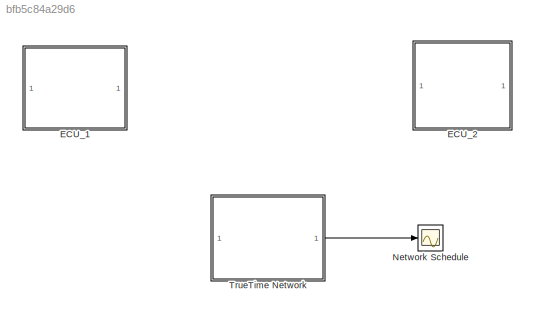
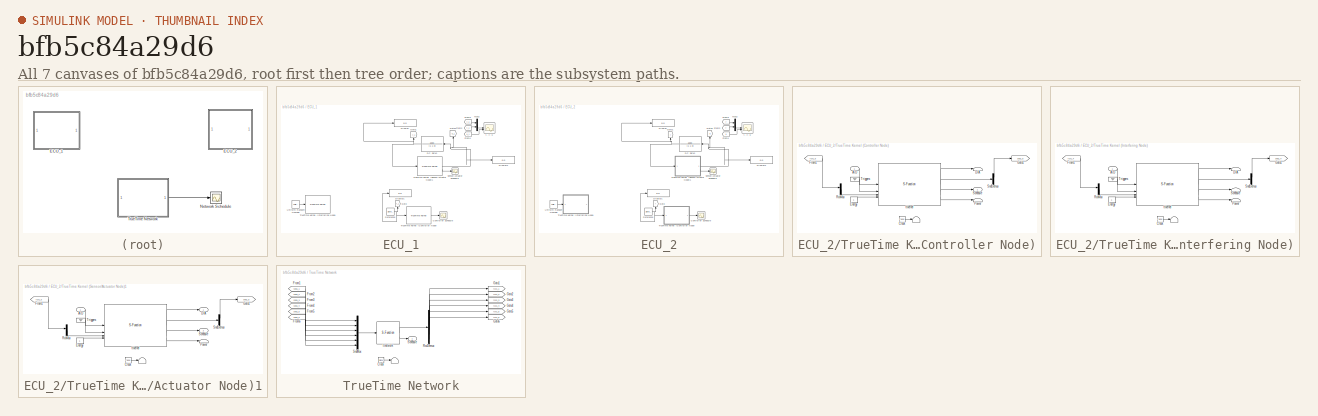
[diagram: thumbnail index - all 7 canvases of the model, root first then tree order]
MODEL slx_bfb5c84a29d6
KIND model
CONFIG AbsTol = auto
CONFIG EnableMultiTasking = off
CONFIG FixedStep = auto
CONFIG MaxStep = auto
CONFIG MinStep = auto
CONFIG RelTol = 1e-3
CONFIG SampleTimeConstraint = Unconstrained
CONFIG SolverName = VariableStepAuto
CONFIG StartTime = 0.0
CONFIG StopTime = 10.0
BLOCK [Scope]  Network Schedule
  Floating = off
  NumInputPorts = 1
  ScopeSpecificationString = Simulink.scopes.TimeScopeBlockCfg('CurrentConfiguration', extmgr.ConfigurationSet(extmgr.Configuration('Core','General UI',true,'FigureColor',[0.156862745098039 0.156862745098039 0.156862745098039]),extmgr.Configuration('Core','Source UI',true),extmgr.Configuration('Sources','WiredSimulink',true,'DataLoggingVariableName','ScopeData2','DataLoggingSaveFormat','StructureWithTime','DataLoggingDecimati...<+3022ch>
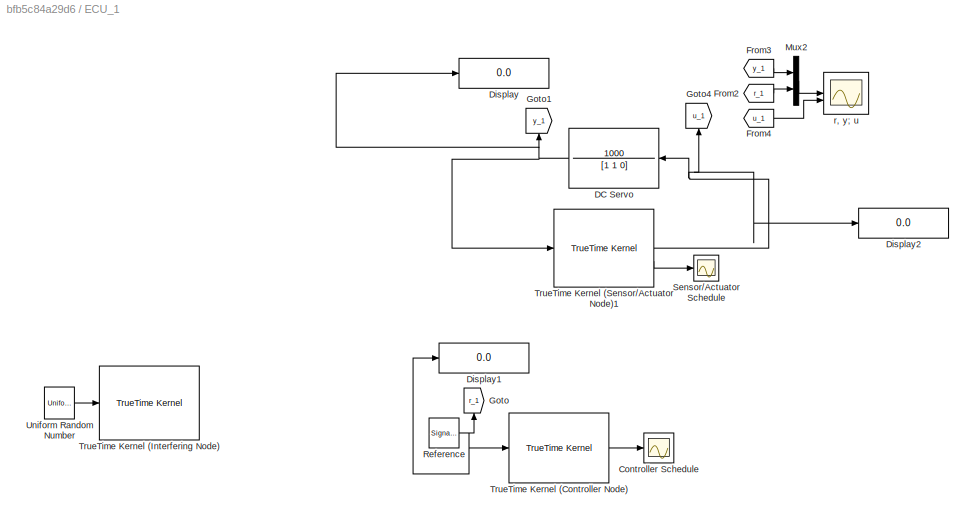
BLOCK [SubSystem] ECU_1
BLOCK [Scope] ECU_1/Controller Schedule
  Floating = off
  NumInputPorts = 1
  ScopeSpecificationString = Simulink.scopes.TimeScopeBlockCfg('CurrentConfiguration', extmgr.ConfigurationSet(extmgr.Configuration('Core','General UI',true,'FigureColor',[0.156862745098039 0.156862745098039 0.156862745098039]),extmgr.Configuration('Core','Source UI',true),extmgr.Configuration('Sources','WiredSimulink',true,'DataLoggingVariableName','ScopeData1','DataLoggingSaveFormat','StructureWithTime','DataLoggingDecimati...<+2845ch>
BLOCK [TransferFcn] ECU_1/DC Servo
  Denominator = [1 1 0]
  Numerator = 1000
BLOCK [Display] ECU_1/Display
  Decimation = 1
BLOCK [Display] ECU_1/Display1
  Decimation = 1
BLOCK [Display] ECU_1/Display2
  Decimation = 1
BLOCK [From] ECU_1/From2
  CloseFcn = tagdialog Close
  GotoTag = r_1
  TagVisibility = global
BLOCK [From] ECU_1/From3
  CloseFcn = tagdialog Close
  GotoTag = y_1
  TagVisibility = global
BLOCK [From] ECU_1/From4
  CloseFcn = tagdialog Close
  GotoTag = u_1
  TagVisibility = global
BLOCK [Goto] ECU_1/Goto
  GotoTag = r_1
  NameLocation = right
  TagVisibility = global
BLOCK [Goto] ECU_1/Goto1
  GotoTag = y_1
  NameLocation = right
  TagVisibility = global
BLOCK [Goto] ECU_1/Goto4
  GotoTag = u_1
  NameLocation = right
  TagVisibility = global
BLOCK [Mux] ECU_1/Mux2
  DisplayOption = bar
  Inputs = 2
BLOCK [SignalGenerator] ECU_1/Reference
  WaveForm = square
BLOCK [Scope] ECU_1/Sensor//Actuator Schedule
  Floating = off
  NumInputPorts = 1
  ScopeSpecificationString = Simulink.scopes.TimeScopeBlockCfg('CurrentConfiguration', extmgr.ConfigurationSet(extmgr.Configuration('Core','General UI',true,'FigureColor',[0.156862745098039 0.156862745098039 0.156862745098039]),extmgr.Configuration('Core','Source UI',true),extmgr.Configuration('Sources','WiredSimulink',true,'DataLoggingVariableName','ScopeData3','DataLoggingSaveFormat','StructureWithTime','DataLoggingDecimati...<+2860ch>
BLOCK [Reference] ECU_1/TrueTime Kernel (Controller Node)  REF=truetime/TrueTime Kernel  (lib defined in slx_0362a698a4ec)
  SourceBlock = truetime/TrueTime Kernel
BLOCK [Reference] ECU_1/TrueTime Kernel (Interfering Node)  REF=truetime/TrueTime Kernel  (lib defined in slx_0362a698a4ec)
  SourceBlock = truetime/TrueTime Kernel
BLOCK [Reference] ECU_1/TrueTime Kernel (Sensor//Actuator Node)1  REF=truetime/TrueTime Kernel  (lib defined in slx_0362a698a4ec)
  SourceBlock = truetime/TrueTime Kernel
BLOCK [UniformRandomNumber] ECU_1/Uniform Random Number
  Minimum = 0
  SampleTime = 0.001
BLOCK [Scope] ECU_1/r, y; u
  Floating = off
  NumInputPorts = 2
  ScopeSpecificationString = Simulink.scopes.TimeScopeBlockCfg('CurrentConfiguration', extmgr.ConfigurationSet(extmgr.Configuration('Core','General UI',true,'FigureColor',[0.156862745098039 0.156862745098039 0.156862745098039]),extmgr.Configuration('Core','Source UI',true),extmgr.Configuration('Sources','WiredSimulink',true,'DataLoggingSaveFormat','StructureWithTime','DataLoggingDecimation','1','DataLoggingDecimateData',true)...<+4022ch>
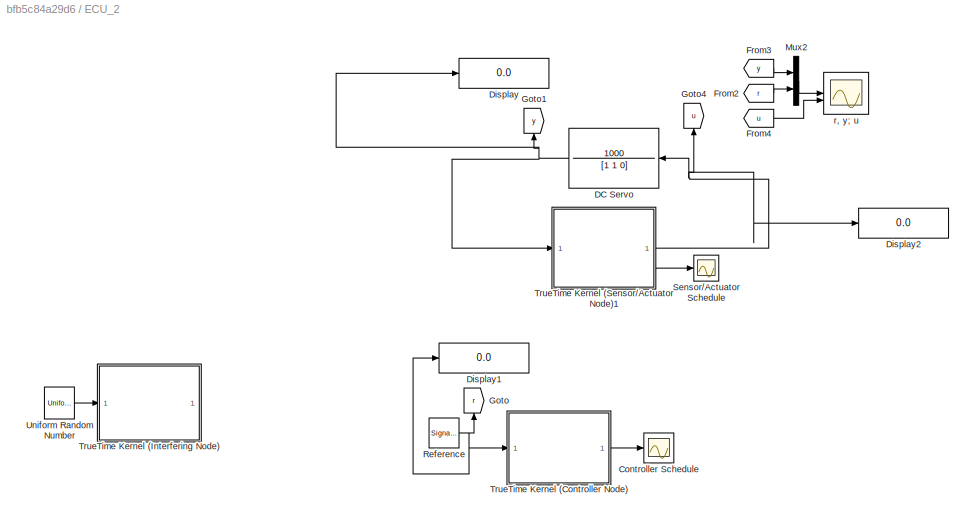
BLOCK [SubSystem] ECU_2
BLOCK [Scope] ECU_2/Controller Schedule
  Floating = off
  NumInputPorts = 1
  ScopeSpecificationString = Simulink.scopes.TimeScopeBlockCfg('CurrentConfiguration', extmgr.ConfigurationSet(extmgr.Configuration('Core','General UI',true,'FigureColor',[0.156862745098039 0.156862745098039 0.156862745098039]),extmgr.Configuration('Core','Source UI',true),extmgr.Configuration('Sources','WiredSimulink',true,'DataLoggingVariableName','ScopeData1','DataLoggingSaveFormat','StructureWithTime','DataLoggingDecimati...<+2845ch>
BLOCK [TransferFcn] ECU_2/DC Servo
  Denominator = [1 1 0]
  Numerator = 1000
BLOCK [Display] ECU_2/Display
  Decimation = 1
BLOCK [Display] ECU_2/Display1
  Decimation = 1
BLOCK [Display] ECU_2/Display2
  Decimation = 1
BLOCK [From] ECU_2/From2
  CloseFcn = tagdialog Close
  GotoTag = r
  TagVisibility = global
BLOCK [From] ECU_2/From3
  CloseFcn = tagdialog Close
  GotoTag = y
  TagVisibility = global
BLOCK [From] ECU_2/From4
  CloseFcn = tagdialog Close
  GotoTag = u
  TagVisibility = global
BLOCK [Goto] ECU_2/Goto
  GotoTag = r
  NameLocation = right
  TagVisibility = global
BLOCK [Goto] ECU_2/Goto1
  GotoTag = y
  NameLocation = right
  TagVisibility = global
BLOCK [Goto] ECU_2/Goto4
  GotoTag = u
  NameLocation = right
  TagVisibility = global
BLOCK [Mux] ECU_2/Mux2
  DisplayOption = bar
  Inputs = 2
BLOCK [SignalGenerator] ECU_2/Reference
  WaveForm = square
BLOCK [Scope] ECU_2/Sensor//Actuator Schedule
  Floating = off
  NumInputPorts = 1
  ScopeSpecificationString = Simulink.scopes.TimeScopeBlockCfg('CurrentConfiguration', extmgr.ConfigurationSet(extmgr.Configuration('Core','General UI',true,'FigureColor',[0.156862745098039 0.156862745098039 0.156862745098039]),extmgr.Configuration('Core','Source UI',true),extmgr.Configuration('Sources','WiredSimulink',true,'DataLoggingVariableName','ScopeData3','DataLoggingSaveFormat','StructureWithTime','DataLoggingDecimati...<+2860ch>
BLOCK [SubSystem] ECU_2/TrueTime Kernel (Controller Node)
  AncestorBlock = truetime/TrueTime Kernel
  ErrorFcn = ttkernel_error
  InitFcn = sfunchk(get_param(gcb,'sfun'));
  LibrarySourceBlock = truetime/TrueTime Kernel
BLOCK [Terminator] ECU_2/TrueTime Kernel (Controller Node)/ 
BLOCK [Inport] ECU_2/TrueTime Kernel (Controller Node)/A//D
BLOCK [Clock] ECU_2/TrueTime Kernel (Controller Node)/Clock
BLOCK [Terminator] ECU_2/TrueTime Kernel (Controller Node)/D//A
BLOCK [Constant] ECU_2/TrueTime Kernel (Controller Node)/Energy
BLOCK [From] ECU_2/TrueTime Kernel (Controller Node)/From1
  GotoTag = rcv1_6
  TagVisibility = global
BLOCK [Goto] ECU_2/TrueTime Kernel (Controller Node)/Goto1
  GotoTag = snd1_6
  TagVisibility = global
BLOCK [Terminator] ECU_2/TrueTime Kernel (Controller Node)/Power
BLOCK [Mux] ECU_2/TrueTime Kernel (Controller Node)/RcvMux
  DisplayOption = bar
  Inputs = 1
BLOCK [Outport] ECU_2/TrueTime Kernel (Controller Node)/Schedule
BLOCK [Demux] ECU_2/TrueTime Kernel (Controller Node)/SndDemux
  DisplayOption = none
  Outputs = 1
BLOCK [Ground] ECU_2/TrueTime Kernel (Controller Node)/Triggers
BLOCK [S-Function] ECU_2/TrueTime Kernel (Controller Node)/ttkernel
  EnableBusSupport = off
  FunctionName = eval(eval(['''sfunchk(''''' sfun ''''')''']))
  Parameters = sfun, args, ninputsoutputs, ntriggers, trigtype, nwnodenbr, clockoffsetdrift
  SFcnIsStateOwnerBlock = off
  SFunctionDeploymentMode = off
BLOCK [SubSystem] ECU_2/TrueTime Kernel (Interfering Node)
  AncestorBlock = truetime/TrueTime Kernel
  ErrorFcn = ttkernel_error
  InitFcn = sfunchk(get_param(gcb,'sfun'));
  LibrarySourceBlock = truetime/TrueTime Kernel
BLOCK [Terminator] ECU_2/TrueTime Kernel (Interfering Node)/ 
BLOCK [Inport] ECU_2/TrueTime Kernel (Interfering Node)/A//D
BLOCK [Clock] ECU_2/TrueTime Kernel (Interfering Node)/Clock
BLOCK [Terminator] ECU_2/TrueTime Kernel (Interfering Node)/D//A
BLOCK [Constant] ECU_2/TrueTime Kernel (Interfering Node)/Energy
BLOCK [From] ECU_2/TrueTime Kernel (Interfering Node)/From1
  GotoTag = rcv1_4
  TagVisibility = global
BLOCK [Goto] ECU_2/TrueTime Kernel (Interfering Node)/Goto1
  GotoTag = snd1_4
  TagVisibility = global
BLOCK [Terminator] ECU_2/TrueTime Kernel (Interfering Node)/Power
BLOCK [Mux] ECU_2/TrueTime Kernel (Interfering Node)/RcvMux
  DisplayOption = bar
  Inputs = 1
BLOCK [Terminator] ECU_2/TrueTime Kernel (Interfering Node)/Schedule
BLOCK [Demux] ECU_2/TrueTime Kernel (Interfering Node)/SndDemux
  DisplayOption = none
  Outputs = 1
BLOCK [Ground] ECU_2/TrueTime Kernel (Interfering Node)/Triggers
BLOCK [S-Function] ECU_2/TrueTime Kernel (Interfering Node)/ttkernel
  EnableBusSupport = off
  FunctionName = eval(eval(['''sfunchk(''''' sfun ''''')''']))
  Parameters = sfun, args, ninputsoutputs, ntriggers, trigtype, nwnodenbr, clockoffsetdrift
  SFcnIsStateOwnerBlock = off
  SFunctionDeploymentMode = off
BLOCK [SubSystem] ECU_2/TrueTime Kernel (Sensor//Actuator Node)1
  AncestorBlock = truetime/TrueTime Kernel
  ErrorFcn = ttkernel_error
  InitFcn = sfunchk(get_param(gcb,'sfun'));
  LibrarySourceBlock = truetime/TrueTime Kernel
BLOCK [Terminator] ECU_2/TrueTime Kernel (Sensor//Actuator Node)1/ 
BLOCK [Inport] ECU_2/TrueTime Kernel (Sensor//Actuator Node)1/A//D
BLOCK [Clock] ECU_2/TrueTime Kernel (Sensor//Actuator Node)1/Clock
BLOCK [Outport] ECU_2/TrueTime Kernel (Sensor//Actuator Node)1/D//A
BLOCK [Constant] ECU_2/TrueTime Kernel (Sensor//Actuator Node)1/Energy
BLOCK [From] ECU_2/TrueTime Kernel (Sensor//Actuator Node)1/From1
  GotoTag = rcv1_5
  TagVisibility = global
BLOCK [Goto] ECU_2/TrueTime Kernel (Sensor//Actuator Node)1/Goto1
  GotoTag = snd1_5
  TagVisibility = global
BLOCK [Terminator] ECU_2/TrueTime Kernel (Sensor//Actuator Node)1/Power
BLOCK [Mux] ECU_2/TrueTime Kernel (Sensor//Actuator Node)1/RcvMux
  DisplayOption = bar
  Inputs = 1
BLOCK [Outport] ECU_2/TrueTime Kernel (Sensor//Actuator Node)1/Schedule
  Port = 2
BLOCK [Demux] ECU_2/TrueTime Kernel (Sensor//Actuator Node)1/SndDemux
  DisplayOption = none
  Outputs = 1
BLOCK [Ground] ECU_2/TrueTime Kernel (Sensor//Actuator Node)1/Triggers
BLOCK [S-Function] ECU_2/TrueTime Kernel (Sensor//Actuator Node)1/ttkernel
  EnableBusSupport = off
  FunctionName = eval(eval(['''sfunchk(''''' sfun ''''')''']))
  Parameters = sfun, args, ninputsoutputs, ntriggers, trigtype, nwnodenbr, clockoffsetdrift
  SFcnIsStateOwnerBlock = off
  SFunctionDeploymentMode = off
BLOCK [UniformRandomNumber] ECU_2/Uniform Random Number
  Minimum = 0
  SampleTime = 0.001
BLOCK [Scope] ECU_2/r, y; u
  Floating = off
  NumInputPorts = 2
  ScopeSpecificationString = Simulink.scopes.TimeScopeBlockCfg('CurrentConfiguration', extmgr.ConfigurationSet(extmgr.Configuration('Core','General UI',true,'FigureColor',[0.156862745098039 0.156862745098039 0.156862745098039]),extmgr.Configuration('Core','Source UI',true),extmgr.Configuration('Sources','WiredSimulink',true,'DataLoggingSaveFormat','StructureWithTime','DataLoggingDecimation','1','DataLoggingDecimateData',true)...<+4022ch>
BLOCK [SubSystem] TrueTime Network
  AncestorBlock = truetime/TrueTime Network
  LibrarySourceBlock = truetime/TrueTime Network
BLOCK [Terminator] TrueTime Network/ 
BLOCK [Clock] TrueTime Network/Clock
BLOCK [From] TrueTime Network/From1
  GotoTag = snd1_1
  TagVisibility = global
BLOCK [From] TrueTime Network/From2
  GotoTag = snd1_2
  TagVisibility = global
BLOCK [From] TrueTime Network/From3
  GotoTag = snd1_3
  TagVisibility = global
BLOCK [From] TrueTime Network/From4
  GotoTag = snd1_4
  TagVisibility = global
BLOCK [From] TrueTime Network/From5
  GotoTag = snd1_5
  TagVisibility = global
BLOCK [From] TrueTime Network/From6
  GotoTag = snd1_6
  TagVisibility = global
BLOCK [Goto] TrueTime Network/Goto1
  GotoTag = rcv1_1
  TagVisibility = global
BLOCK [Goto] TrueTime Network/Goto2
  GotoTag = rcv1_2
  TagVisibility = global
BLOCK [Goto] TrueTime Network/Goto3
  GotoTag = rcv1_3
  TagVisibility = global
BLOCK [Goto] TrueTime Network/Goto4
  GotoTag = rcv1_4
  TagVisibility = global
BLOCK [Goto] TrueTime Network/Goto5
  GotoTag = rcv1_5
  TagVisibility = global
BLOCK [Goto] TrueTime Network/Goto6
  GotoTag = rcv1_6
  TagVisibility = global
BLOCK [Demux] TrueTime Network/RcvDemux
  DisplayOption = none
  Outputs = 6
BLOCK [Outport] TrueTime Network/Schedule
BLOCK [Mux] TrueTime Network/SndMux
  DisplayOption = bar
  Inputs = 6
BLOCK [S-Function] TrueTime Network/ttnetwork
  EnableBusSupport = off
  FunctionName = ttnetwork
  Parameters = nwtype,nwnbr,nnodes,rate,minsize,lossprob,bandwidths,slotsize,schedule,memsize,buftype,overflow,seed,dynSchedule,miniSlotSize,NIT,QSortMode,sync,irtSchedule,nrtLength,nodeGraph
  SFcnIsStateOwnerBlock = off
  SFunctionDeploymentMode = off
NET ECU_1/DC Servo:1 -> ECU_1/Display:1, ECU_1/Goto1:1, ECU_1/TrueTime Kernel (Sensor//Actuator Node)1:1
LINE ECU_1/From2:1 -> ECU_1/Mux2:2
LINE ECU_1/From3:1 -> ECU_1/Mux2:1
LINE ECU_1/From4:1 -> ECU_1/r, y; u:2
LINE ECU_1/Mux2:1 -> ECU_1/r, y; u:1
NET ECU_1/Reference:1 -> ECU_1/Display1:1, ECU_1/Goto:1, ECU_1/TrueTime Kernel (Controller Node):1
LINE ECU_1/TrueTime Kernel (Controller Node):1 -> ECU_1/Controller Schedule:1
NET ECU_1/TrueTime Kernel (Sensor//Actuator Node)1:1 -> ECU_1/DC Servo:1, ECU_1/Display2:1, ECU_1/Goto4:1
LINE ECU_1/TrueTime Kernel (Sensor//Actuator Node)1:2 -> ECU_1/Sensor//Actuator Schedule:1
LINE ECU_1/Uniform Random Number:1 -> ECU_1/TrueTime Kernel (Interfering Node):1
NET ECU_2/DC Servo:1 -> ECU_2/Display:1, ECU_2/Goto1:1, ECU_2/TrueTime Kernel (Sensor//Actuator Node)1:1
LINE ECU_2/From2:1 -> ECU_2/Mux2:2
LINE ECU_2/From3:1 -> ECU_2/Mux2:1
LINE ECU_2/From4:1 -> ECU_2/r, y; u:2
LINE ECU_2/Mux2:1 -> ECU_2/r, y; u:1
NET ECU_2/Reference:1 -> ECU_2/Display1:1, ECU_2/Goto:1, ECU_2/TrueTime Kernel (Controller Node):1
LINE ECU_2/TrueTime Kernel (Controller Node):1 -> ECU_2/Controller Schedule:1
NET ECU_2/TrueTime Kernel (Sensor//Actuator Node)1:1 -> ECU_2/DC Servo:1, ECU_2/Display2:1, ECU_2/Goto4:1
LINE ECU_2/TrueTime Kernel (Sensor//Actuator Node)1:2 -> ECU_2/Sensor//Actuator Schedule:1
LINE ECU_2/Uniform Random Number:1 -> ECU_2/TrueTime Kernel (Interfering Node):1
LINE TrueTime Network:1 ->  Network Schedule:1
note: NET lines group one-source signal fan-out (src -> all destinations, sorted); 1:1 wires keep LINE
